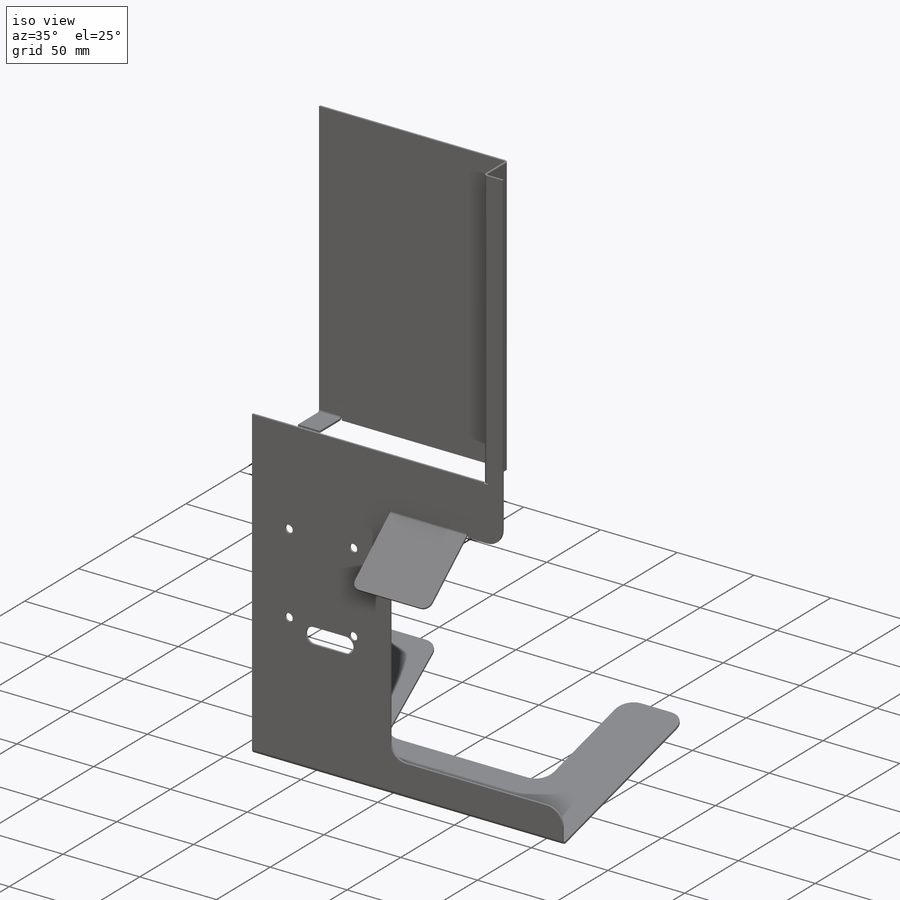
[diagram: iso view]
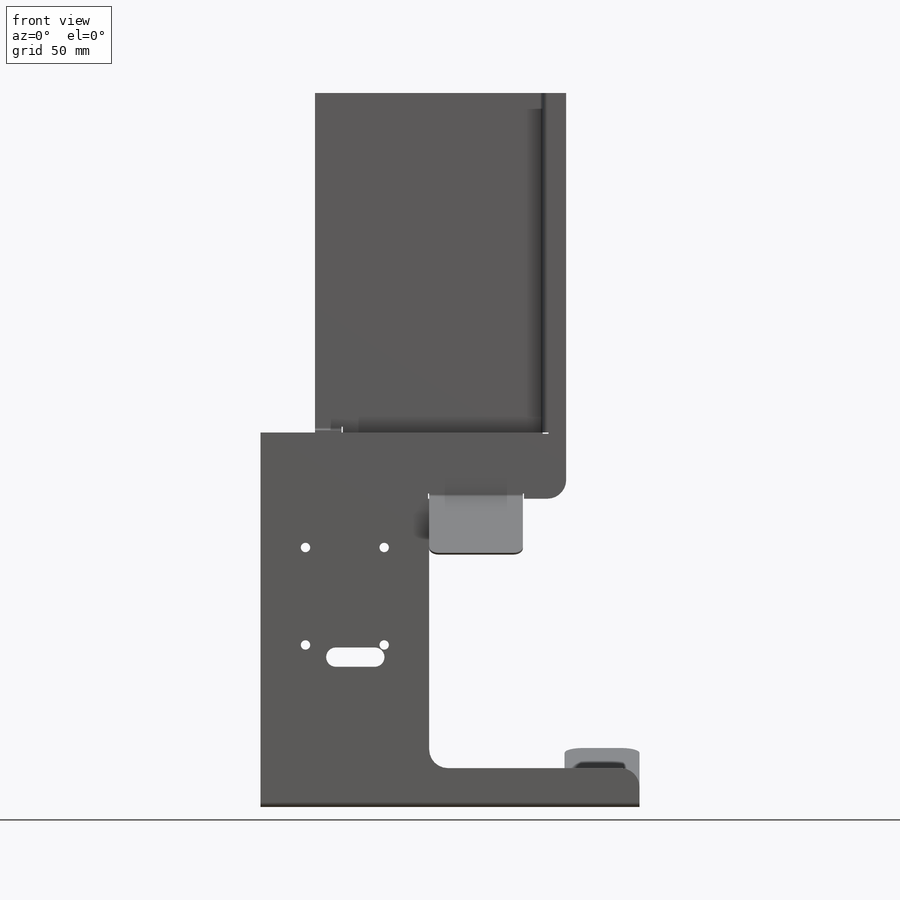
[diagram: front view]
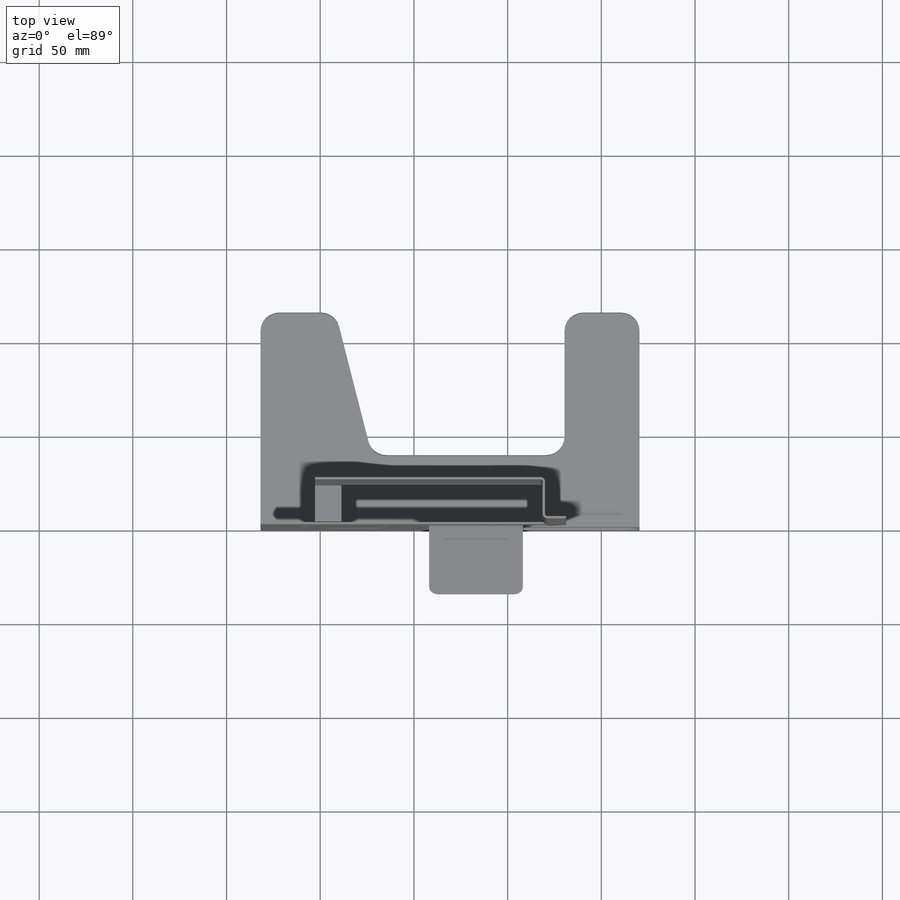
[diagram: top view]
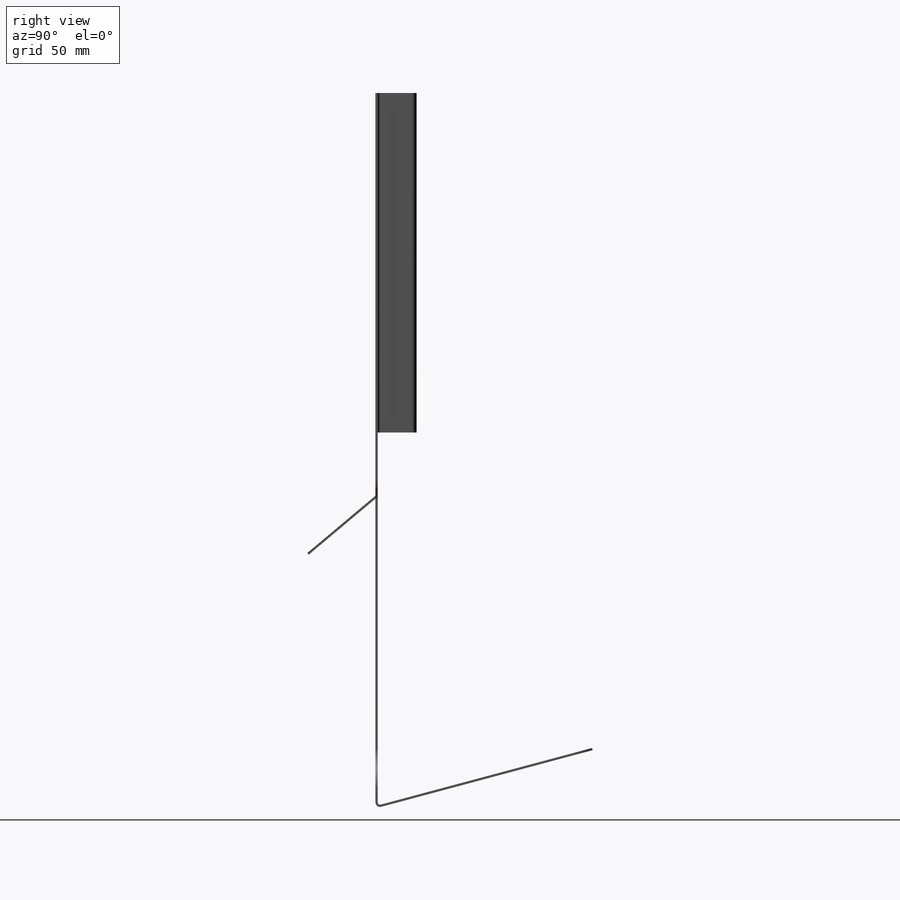
[diagram: right view]
SOLIDWORKS PART (.sldprt)
format: sldprt  version: not decoded by parser v0  size: 458,240 bytes
history: native  units: mm
features: sketch x29, sheet_metal_op x10, cut_extrude x4, material x1 + 9 further entries (+13 scaffold rows collapsed; 9 parser-record rows omitted)
feature tree (75):
  scaffold x13  (default folders/planes/origin — collapsed)
  material  "Material <not specified>"
  sketch  "Sketch1"  dims[c1.D1=10.0mm c1.D2=5.0mm c2.D1=200.0mm c2.D2=200.0mm c3.D1=~129.930522mm c4.D1=~0.018041deg c5.D1=50.0mm c5.D2=150.0mm c6.D1=1.27mm c6.D2=0.5 c6.D3=0.0deg c6.D6=~28.64789deg]
  sheet_metal_op  "Base-Flange1"
  sketch  "Sketch18"
  sketch  "Sketch19"
  cut_extrude  "Cut-Extrude2"  Depth=5mm
  sketch  "Sketch22"  dims[c1.D1=1.27mm c1.D4=~1570.796327mm c1.D5=3.0 c1.D8=~0.034782deg c1.D9=~0.034782deg c2.D1=1.27mm c2.D2=~28.64789deg c2.D3=0.0deg c2.D6=10.0mm c2.D7=24.0mm]
  sketch  "Sketch25"  dims[c1.D1=1.27mm c1.D4=~1570.796327mm c1.D5=4.0 c1.D8=~0.034782deg c1.D9=~0.034782deg c2.D1=1.27mm c2.D2=~28.64789deg c2.D3=0.0deg c2.D6=10.0mm c2.D7=~122.69824mm]
  sketch  "Sketch28"  dims[c1.D1=1.27mm c1.D4=~1570.796327mm c1.D5=5.0 c1.D8=~0.034782deg c1.D9=~0.034782deg c2.D1=1.27mm c2.D2=~28.64789deg c2.D3=0.0deg c2.D6=10.0mm c2.D7=22.5mm]
  sketch  "Sketch29"  dims[D1=5.0mm D2=5.0mm D3=5.0mm D4=5.0mm]
  cut_extrude  "Cut-Extrude3"  Depth=5mm
  cut_extrude  "Cut-Extrude1"  Depth=5mm
  sketch  "Sketch33"  dims[c1.D2=5.0mm c1.D1=52.0mm c2.D1=1.27mm c2.D4=~959.931089mm c2.D5=6.0 c2.D8=~0.034782deg c2.D9=~0.034782deg c3.D1=1.27mm c3.D2=~28.64789deg c3.D3=0.0deg c3.D6=10.0mm c3.D7=~45.096865mm]
  sketch  "Sketch34"  dims[D3=4.5mm D4=4.5mm D1=40.0mm D2=40.0mm D5=31.12mm D6=15.6mm]
  cut_extrude  "Cut-Extrude6"  Depth=10mm
  sketch  "Bend-Lines1"
  sketch  "Bounding-Box1"
  sheet_metal_op  "Sheet-Metal1"
  "Flat-Pattern1"
  sketch  "Bend-Lines2"
  sketch  "Bounding-Box2"
  parser-record x9  (decoder bookkeeping rows leaked as tree rows — omitted from the tree; the rows remain in map.json)
  sheet_metal_op  "Sheet-Metal6"
  "Flat-Pattern1"
  sketch  "Bend-Lines2"
  sketch  "Bounding-Box2"
  sheet_metal_op  "Sheet-Metal7"
  "Flat-Pattern1"
  sketch  "Bend-Lines2"
  sketch  "Bounding-Box2"
  sheet_metal_op  "Sheet-Metal8"
  "Flat-Pattern1"
  sketch  "Bend-Lines2"
  sketch  "Bounding-Box2"
  sheet_metal_op  "Sheet-Metal9"
  "Flat-Pattern1"
  sketch  "Bend-Lines2"
  sketch  "Bounding-Box2"
  sheet_metal_op  "Sheet-Metal10"
  "Flat-Pattern1"
  sketch  "Bend-Lines2"
  sketch  "Bounding-Box2"
  sheet_metal_op  "Sheet-Metal11"
  "Flat-Pattern1"
  sketch  "Bend-Lines2"
  sketch  "Bounding-Box2"
  sheet_metal_op  "Sheet-Metal12"
  "Flat-Pattern1"
  sketch  "Bend-Lines2"
  sketch  "Bounding-Box2"
  sheet_metal_op  "Sheet-Metal13"
  "Flat-Pattern1"
  sketch  "Bend-Lines2"
  sketch  "Bounding-Box2"
decode coverage: 11 of 43 modeling features carry decoded parameters; 9 rows unclassified (native names shown)
note: ~ marks probable driven/reference dimensions
note: suppression state not decoded; provenance and decode notes live in map.json
